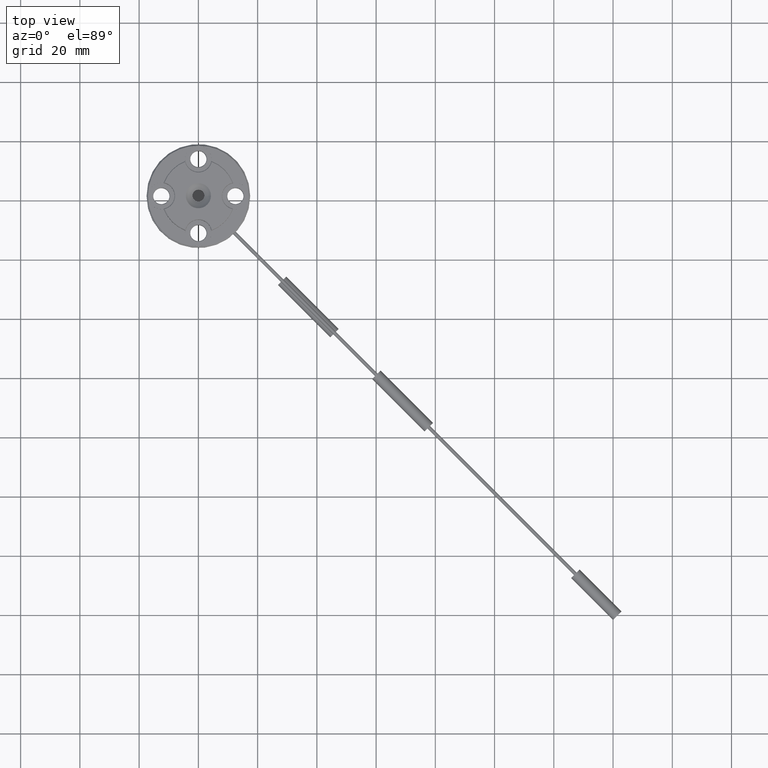
[diagram: clean part render]
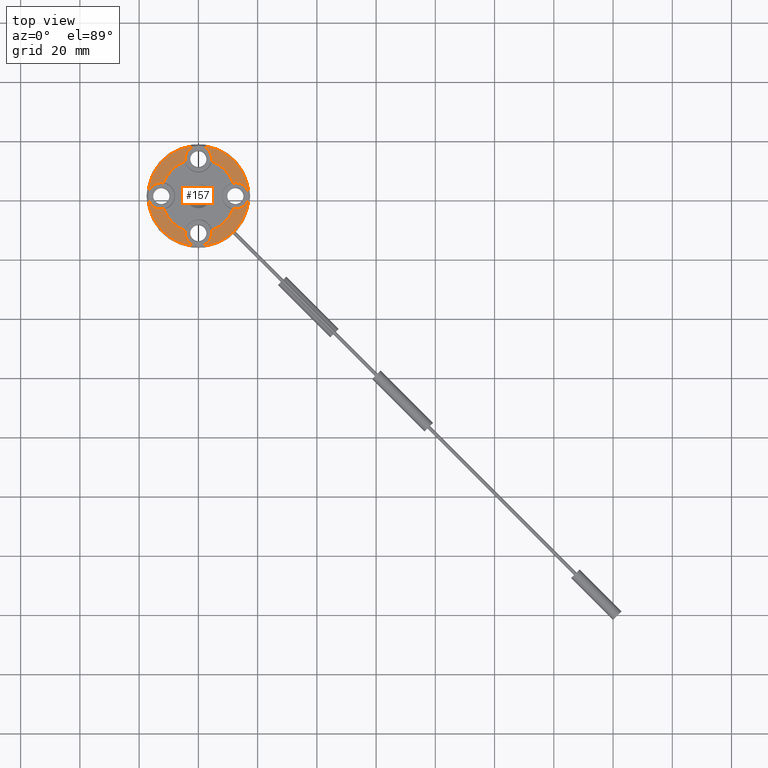
[diagram: same view with one face highlighted and labeled with its STEP entity id]
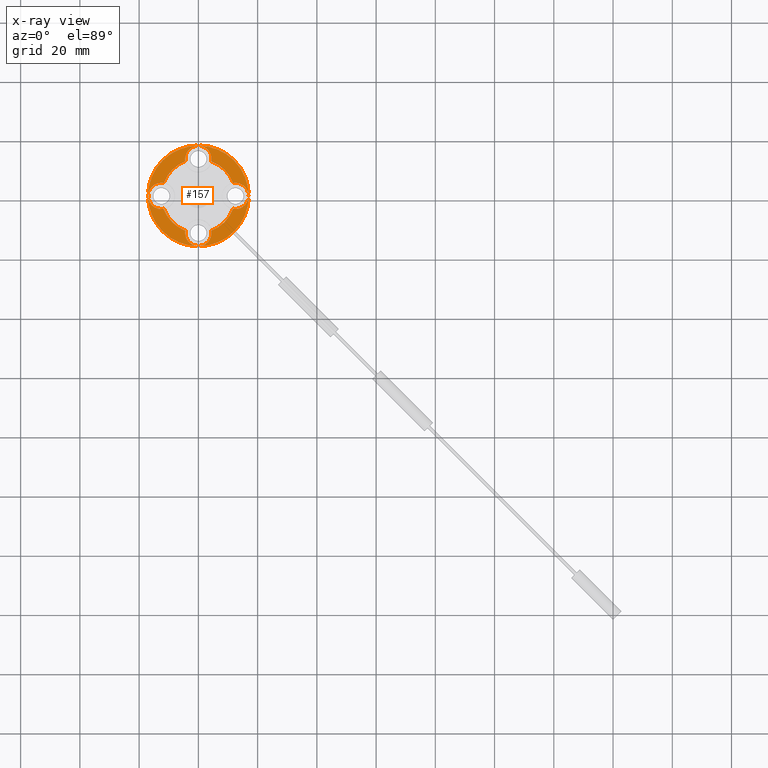
[diagram: x-ray of the same camera — body ghosted, the highlighted face saturated]
A machine part, top view. The second image highlights one B-rep face of the part: STEP entity #157.
The next image is the same camera in x-ray: the body ghosted, the highlighted face saturated — about 0% of this face is hidden behind the body in this view.
In plain terms, the highlighted planar face has unit normal (0, 0, 1).
Its self-contained STEP definition (entity closure, byte-faithful):
#70=PLANE('',#1118);
#157=ADVANCED_FACE('',(#378,#379),#70,.T.);
#264=CIRCLE('',#1102,17.);
#266=CIRCLE('',#1105,12.5);
#268=CIRCLE('',#1108,12.5);
#270=CIRCLE('',#1111,12.5);
#271=CIRCLE('',#1113,4.45);
#272=CIRCLE('',#1114,4.45);
#273=CIRCLE('',#1115,4.45);
#274=CIRCLE('',#1116,4.45);
#275=CIRCLE('',#1117,12.5);
#378=FACE_BOUND('',#513,.T.);
#379=FACE_BOUND('',#514,.T.);
#513=EDGE_LOOP('',(#673));
#514=EDGE_LOOP('',(#674,#675,#676,#677,#678,#679,#680,#681));
#673=ORIENTED_EDGE('',*,*,#955,.T.);
#674=ORIENTED_EDGE('',*,*,#968,.F.);
#675=ORIENTED_EDGE('',*,*,#959,.F.);
#676=ORIENTED_EDGE('',*,*,#969,.F.);
#677=ORIENTED_EDGE('',*,*,#963,.F.);
#678=ORIENTED_EDGE('',*,*,#970,.F.);
#679=ORIENTED_EDGE('',*,*,#967,.F.);
#680=ORIENTED_EDGE('',*,*,#971,.F.);
#681=ORIENTED_EDGE('',*,*,#972,.F.);
#862=VERTEX_POINT('',#1835);
#864=VERTEX_POINT('',#1839);
#866=VERTEX_POINT('',#1843);
#868=VERTEX_POINT('',#1848);
#870=VERTEX_POINT('',#1852);
#872=VERTEX_POINT('',#1857);
#874=VERTEX_POINT('',#1861);
#875=VERTEX_POINT('',#1865);
#876=VERTEX_POINT('',#1869);
#955=EDGE_CURVE('',#862,#862,#264,.T.);
#959=EDGE_CURVE('',#866,#864,#266,.T.);
#963=EDGE_CURVE('',#870,#868,#268,.T.);
#967=EDGE_CURVE('',#874,#872,#270,.T.);
#968=EDGE_CURVE('',#864,#875,#271,.T.);
#969=EDGE_CURVE('',#868,#866,#272,.T.);
#970=EDGE_CURVE('',#872,#870,#273,.T.);
#971=EDGE_CURVE('',#876,#874,#274,.T.);
#972=EDGE_CURVE('',#875,#876,#275,.T.);
#1102=AXIS2_PLACEMENT_3D('',#1834,#1331,#1332);
#1105=AXIS2_PLACEMENT_3D('',#1844,#1339,#1340);
#1108=AXIS2_PLACEMENT_3D('',#1853,#1347,#1348);
#1111=AXIS2_PLACEMENT_3D('',#1862,#1355,#1356);
#1113=AXIS2_PLACEMENT_3D('',#1864,#1359,#1360);
#1114=AXIS2_PLACEMENT_3D('',#1866,#1361,#1362);
#1115=AXIS2_PLACEMENT_3D('',#1867,#1363,#1364);
#1116=AXIS2_PLACEMENT_3D('',#1868,#1365,#1366);
#1117=AXIS2_PLACEMENT_3D('',#1870,#1367,#1368);
#1118=AXIS2_PLACEMENT_3D('',#1871,#1369,#1370);
#1331=DIRECTION('',(0.,0.,1.));
#1332=DIRECTION('',(1.,0.,0.));
#1339=DIRECTION('',(0.,0.,1.));
#1340=DIRECTION('',(1.,0.,0.));
#1347=DIRECTION('',(0.,0.,1.));
#1348=DIRECTION('',(1.,0.,0.));
#1355=DIRECTION('',(0.,0.,1.));
#1356=DIRECTION('',(1.,0.,0.));
#1359=DIRECTION('',(0.,0.,1.));
#1360=DIRECTION('',(1.,0.,0.));
#1361=DIRECTION('',(0.,0.,1.));
#1362=DIRECTION('',(1.,0.,0.));
#1363=DIRECTION('',(0.,0.,1.));
#1364=DIRECTION('',(1.,0.,0.));
#1365=DIRECTION('',(0.,0.,1.));
#1366=DIRECTION('',(1.,0.,0.));
#1367=DIRECTION('',(0.,0.,1.));
#1368=DIRECTION('',(1.,0.,0.));
#1369=DIRECTION('',(0.,0.,1.));
#1370=DIRECTION('',(1.,0.,0.));
#1834=CARTESIAN_POINT('',(0.,0.,-4.99999999999997));
#1835=CARTESIAN_POINT('',(17.,0.,-4.99999999999997));
#1839=CARTESIAN_POINT('',(-11.7079,4.37893566863,-4.99999999999997));
#1843=CARTESIAN_POINT('',(-4.37893566863,11.7079,-4.99999999999997));
#1844=CARTESIAN_POINT('',(0.,0.,-4.99999999999995));
#1848=CARTESIAN_POINT('',(4.37893566863,11.7079,-4.99999999999997));
#1852=CARTESIAN_POINT('',(11.7079,4.37893566863,-4.99999999999997));
#1853=CARTESIAN_POINT('',(0.,0.,-4.99999999999995));
#1857=CARTESIAN_POINT('',(11.7079,-4.37893566863,-4.99999999999997));
#1861=CARTESIAN_POINT('',(4.37893566863,-11.7079,-4.99999999999997));
#1862=CARTESIAN_POINT('',(0.,0.,-4.99999999999995));
#1864=CARTESIAN_POINT('',(-12.5,0.,-4.99999999999997));
#1865=CARTESIAN_POINT('',(-11.7079,-4.37893566863,-4.99999999999997));
#1866=CARTESIAN_POINT('',(0.,12.5,-4.99999999999997));
#1867=CARTESIAN_POINT('',(12.5,0.,-4.99999999999997));
#1868=CARTESIAN_POINT('',(0.,-12.5,-4.99999999999997));
#1869=CARTESIAN_POINT('',(-4.37893566863,-11.7079,-4.99999999999997));
#1870=CARTESIAN_POINT('',(0.,0.,-4.99999999999995));
#1871=CARTESIAN_POINT('',(-12.5,0.,-4.99999999999997));